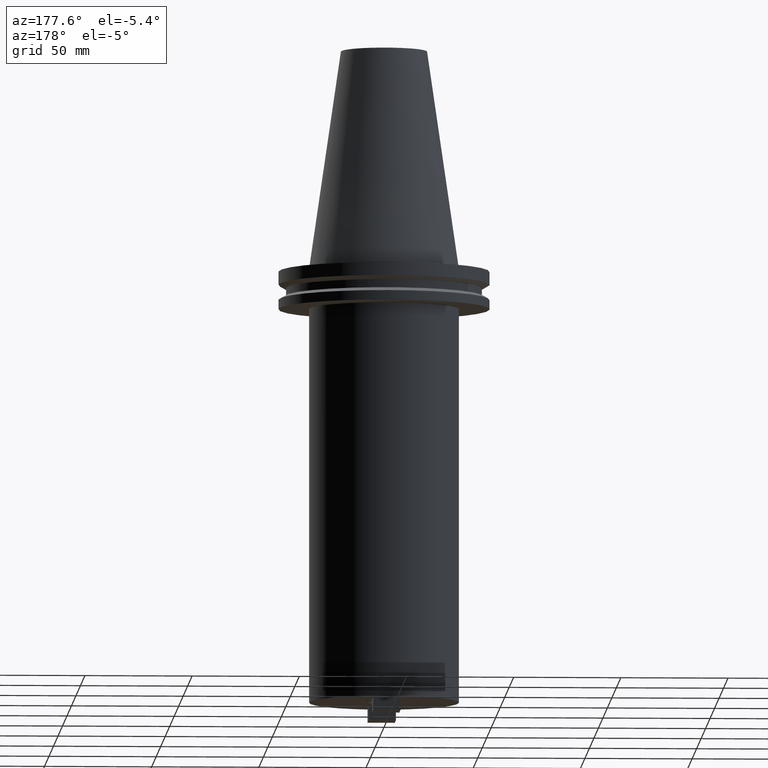
[diagram: clean part render]
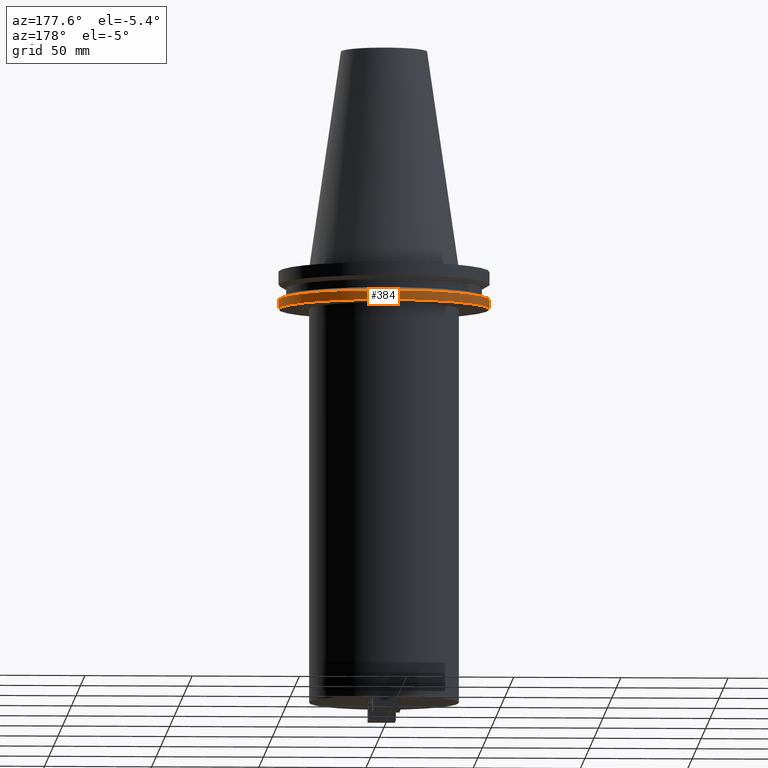
[diagram: same view with one face highlighted and labeled with its STEP entity id]
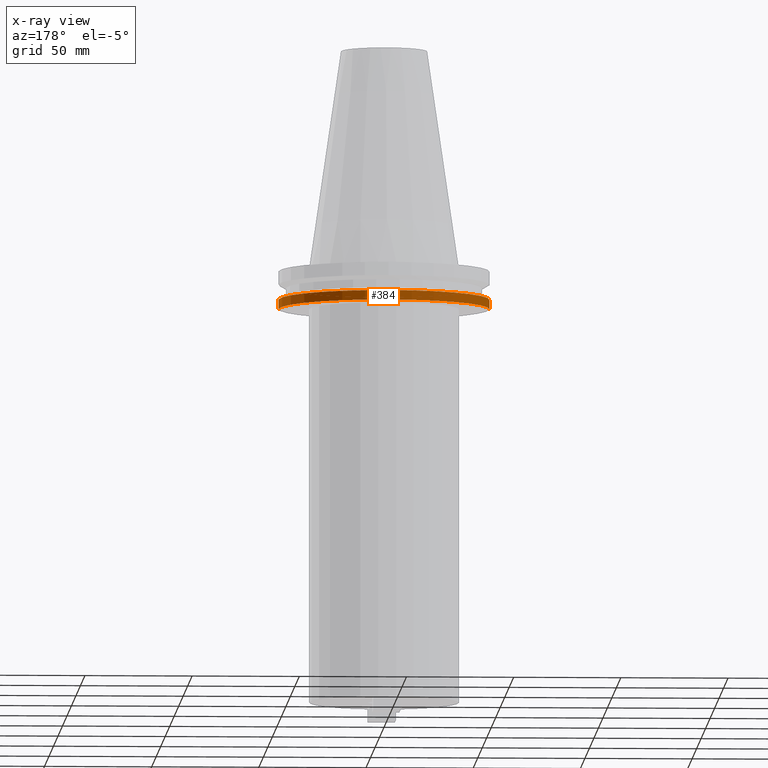
[diagram: x-ray of the same camera — body ghosted, the highlighted face saturated]
A machine part, auxiliary view. The second image highlights one B-rep face of the part: STEP entity #384.
The next image is the same camera in x-ray: the body ghosted, the highlighted face saturated — about 0% of this face is hidden behind the body in this view.
In plain terms, the highlighted cylindrical surface (partial cylindrical patch) has radius 49.215 mm, axis along (-0, -0, 1).
Its self-contained STEP definition (entity closure, byte-faithful):
#4 = EDGE_CURVE ( 'NONE', #567, #404, #360, .T. ) ;
#14 = CARTESIAN_POINT ( 'NONE',  ( 49.21499999999998920, 0.000000000000000000, -19.04999999999999716 ) ) ;
#34 = DIRECTION ( 'NONE',  ( -0.000000000000000000, -0.000000000000000000, 1.000000000000000000 ) ) ;
#102 = CARTESIAN_POINT ( 'NONE',  ( 0.000000000000000000, 0.000000000000000000, 101.5999999999999943 ) ) ;
#109 = ORIENTED_EDGE ( 'NONE', *, *, #313, .F. ) ;
#149 = ORIENTED_EDGE ( 'NONE', *, *, #4, .T. ) ;
#205 = EDGE_CURVE ( 'NONE', #356, #567, #843, .T. ) ;
#241 = DIRECTION ( 'NONE',  ( 1.000000000000000000, 0.000000000000000000, 0.000000000000000000 ) ) ;
#244 = CYLINDRICAL_SURFACE ( 'NONE', #410, 49.21499999999998920 ) ;
#249 = DIRECTION ( 'NONE',  ( -0.000000000000000000, -0.000000000000000000, 1.000000000000000000 ) ) ;
#275 = CARTESIAN_POINT ( 'NONE',  ( -49.21499999999998920, 6.027099222003697037E-15, 101.5999999999999943 ) ) ;
#291 = CARTESIAN_POINT ( 'NONE',  ( 0.000000000000000000, 0.000000000000000000, -19.04999999999999716 ) ) ;
#305 = DIRECTION ( 'NONE',  ( -0.000000000000000000, -0.000000000000000000, 1.000000000000000000 ) ) ;
#313 = EDGE_CURVE ( 'NONE', #356, #538, #570, .T. ) ;
#329 = EDGE_LOOP ( 'NONE', ( #835, #149, #434, #109 ) ) ;
#356 = VERTEX_POINT ( 'NONE', #14 ) ;
#360 = LINE ( 'NONE', #275, #708 ) ;
#384 = ADVANCED_FACE ( 'NONE', ( #943 ), #244, .T. ) ;
#404 = VERTEX_POINT ( 'NONE', #876 ) ;
#410 = AXIS2_PLACEMENT_3D ( 'NONE', #102, #249, #241 ) ;
#412 = AXIS2_PLACEMENT_3D ( 'NONE', #291, #772, #1008 ) ;
#434 = ORIENTED_EDGE ( 'NONE', *, *, #655, .F. ) ;
#450 = CARTESIAN_POINT ( 'NONE',  ( 0.000000000000000000, 0.000000000000000000, -14.65761014474876944 ) ) ;
#480 = VECTOR ( 'NONE', #556, 1000.000000000000000 ) ;
#538 = VERTEX_POINT ( 'NONE', #833 ) ;
#541 = CIRCLE ( 'NONE', #966, 49.21499999999998920 ) ;
#556 = DIRECTION ( 'NONE',  ( -0.000000000000000000, -0.000000000000000000, 1.000000000000000000 ) ) ;
#567 = VERTEX_POINT ( 'NONE', #652 ) ;
#570 = LINE ( 'NONE', #786, #480 ) ;
#652 = CARTESIAN_POINT ( 'NONE',  ( -49.21499999999998920, 6.027099222003697037E-15, -19.04999999999999716 ) ) ;
#655 = EDGE_CURVE ( 'NONE', #538, #404, #541, .T. ) ;
#708 = VECTOR ( 'NONE', #34, 1000.000000000000000 ) ;
#772 = DIRECTION ( 'NONE',  ( -0.000000000000000000, -0.000000000000000000, 1.000000000000000000 ) ) ;
#780 = DIRECTION ( 'NONE',  ( 1.000000000000000000, 0.000000000000000000, 0.000000000000000000 ) ) ;
#786 = CARTESIAN_POINT ( 'NONE',  ( 49.21499999999998920, 0.000000000000000000, 101.5999999999999943 ) ) ;
#833 = CARTESIAN_POINT ( 'NONE',  ( 49.21499999999998920, 0.000000000000000000, -14.65761014474876944 ) ) ;
#835 = ORIENTED_EDGE ( 'NONE', *, *, #205, .T. ) ;
#843 = CIRCLE ( 'NONE', #412, 49.21499999999998920 ) ;
#876 = CARTESIAN_POINT ( 'NONE',  ( -49.21499999999998920, 6.027099222003697037E-15, -14.65761014474876944 ) ) ;
#943 = FACE_OUTER_BOUND ( 'NONE', #329, .T. ) ;
#966 = AXIS2_PLACEMENT_3D ( 'NONE', #450, #305, #780 ) ;
#1008 = DIRECTION ( 'NONE',  ( 1.000000000000000000, 0.000000000000000000, 0.000000000000000000 ) ) ;